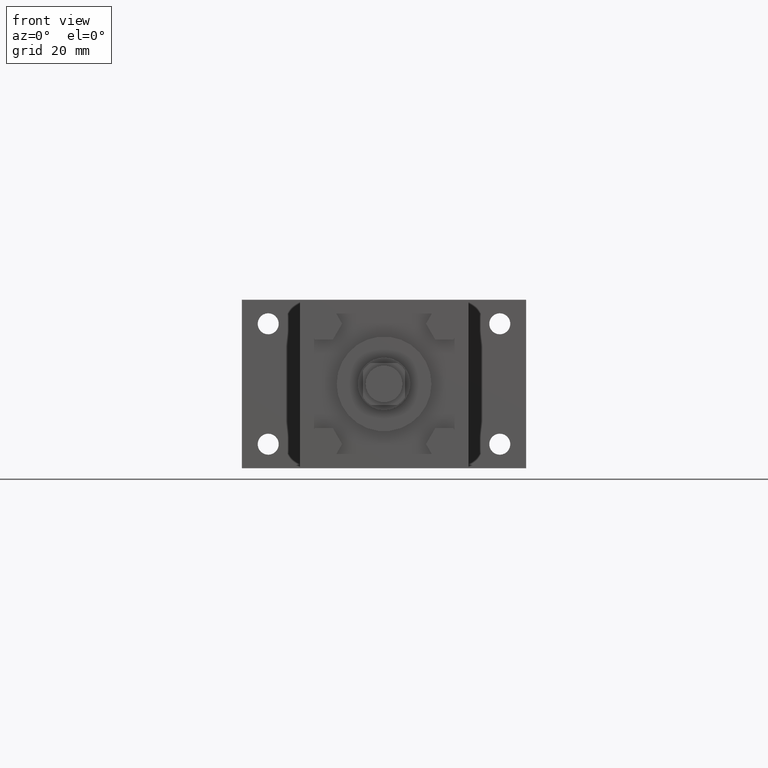
[diagram: clean part render]
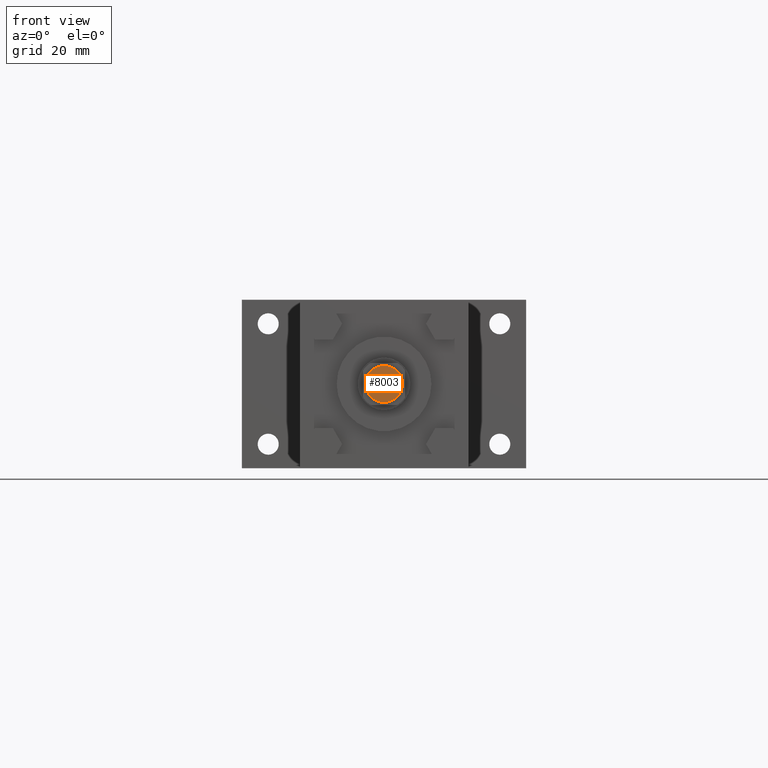
[diagram: same view with one face highlighted and labeled with its STEP entity id]
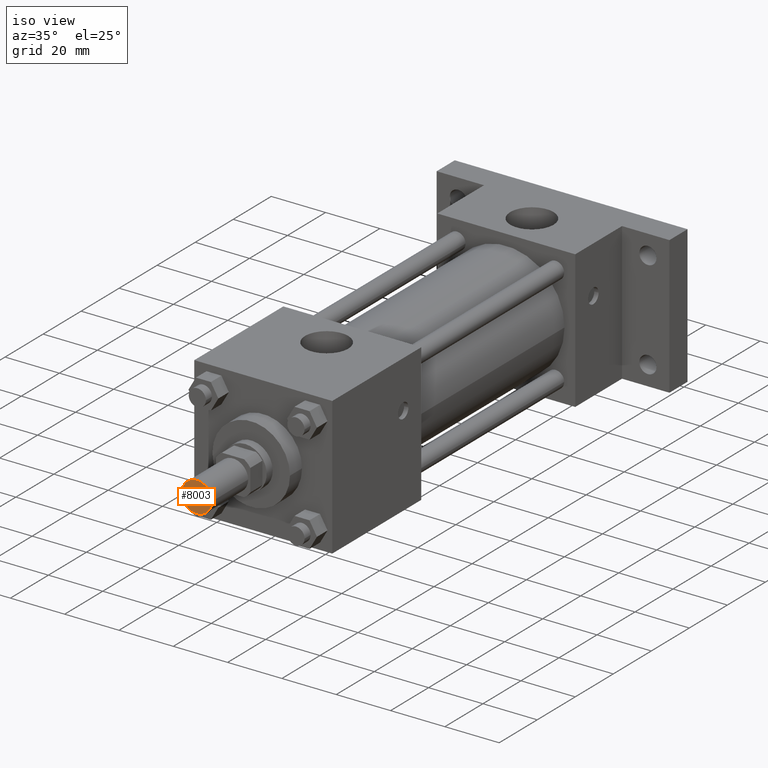
[diagram: same view with one face highlighted and labeled with its STEP entity id]
A machine part, front view. The second image highlights one B-rep face of the part: STEP entity #8003.
A second angle (iso view) of the same face is appended — the face is thin or edge-on in the first view.
In plain terms, the highlighted planar face has unit normal (0, 1, 0).
Its self-contained STEP definition (entity closure, byte-faithful):
#96=EDGE_CURVE('',#102,#102,#97,.T.);
#97=CIRCLE('',#98,5.556250000E+000);
#98=AXIS2_PLACEMENT_3D('',#99,#100,#101);
#99=CARTESIAN_POINT('',(0.000000000E+000,-1.905000000E+001,0.000000000E+000));
#100=DIRECTION('',(0.0E+000,1.0E+000,0.0E+000));
#101=DIRECTION('',(1.0E+000,0.0E+000,0.0E+000));
#102=VERTEX_POINT('',#103);
#103=CARTESIAN_POINT('',(5.556250000E+000,-1.905000000E+001,0.000000000E+000));
#110=FACE_OUTER_BOUND('',#111,.T.);
#111=EDGE_LOOP('',(#112));
#112=ORIENTED_EDGE('',*,*,#96,.F.);
#113=PLANE('',#114);
#114=AXIS2_PLACEMENT_3D('',#115,#116,#117);
#115=CARTESIAN_POINT('',(0.000000000E+000,-1.905000000E+001,0.000000000E+000));
#116=DIRECTION('',(0.0E+000,1.0E+000,0.0E+000));
#117=DIRECTION('',(0.0E+000,0.0E+000,1.0E+000));
#8003=ADVANCED_FACE('',(#110),#113,.F.);